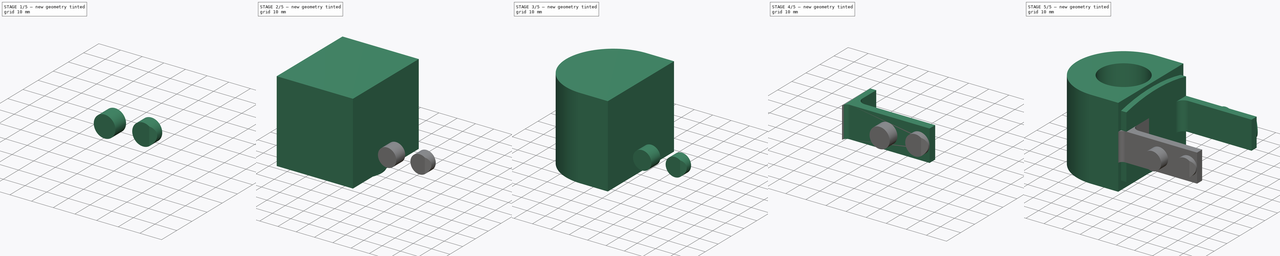
[diagram: build sequence overview — one tinted view per stage of 5, left to right]
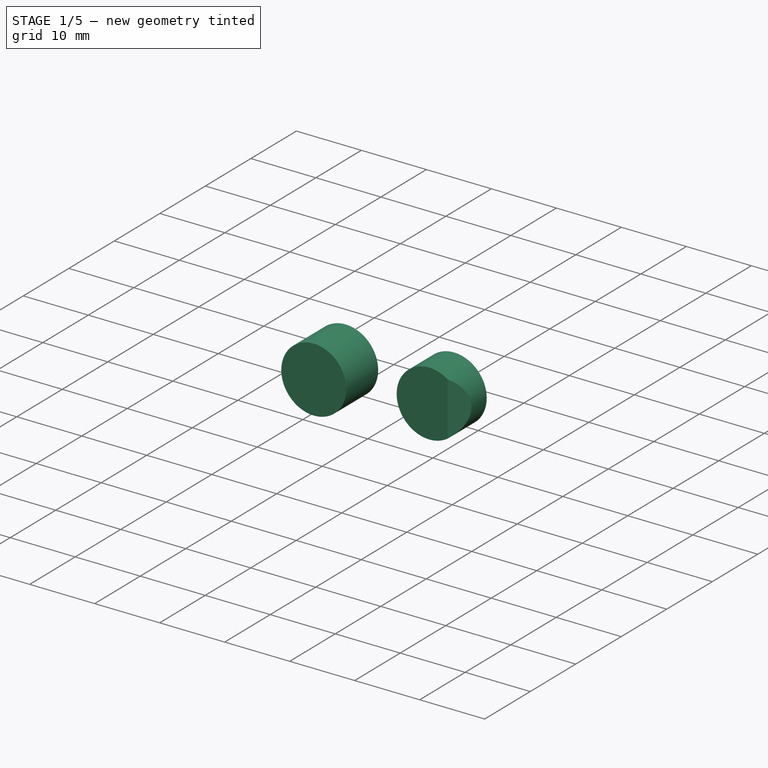
[diagram: stage 1 of 5 — iso view after this stage's code; geometry added in this stage tinted green]
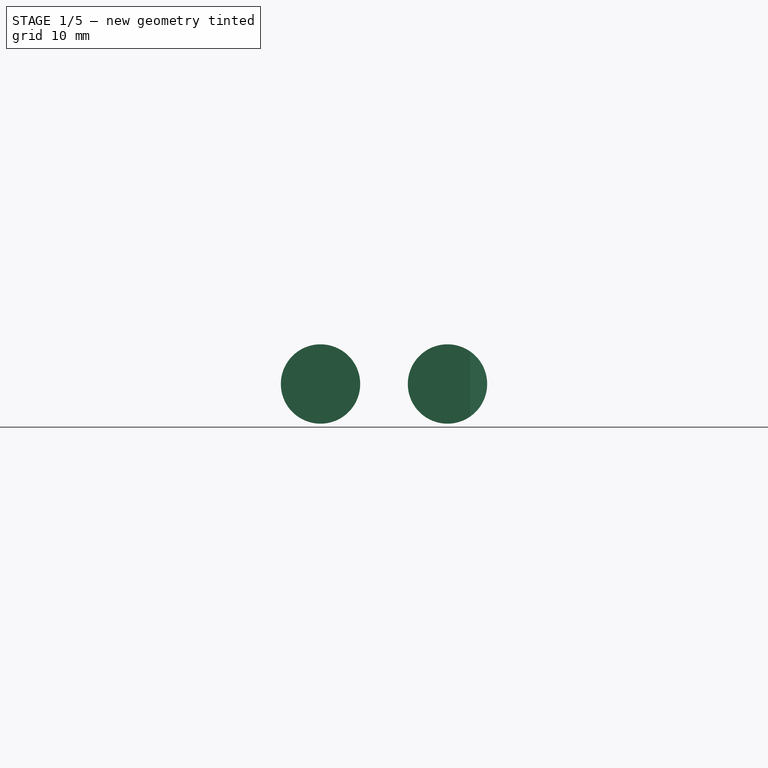
[diagram: stage 1 of 5 — front view after this stage's code; geometry added in this stage tinted green]
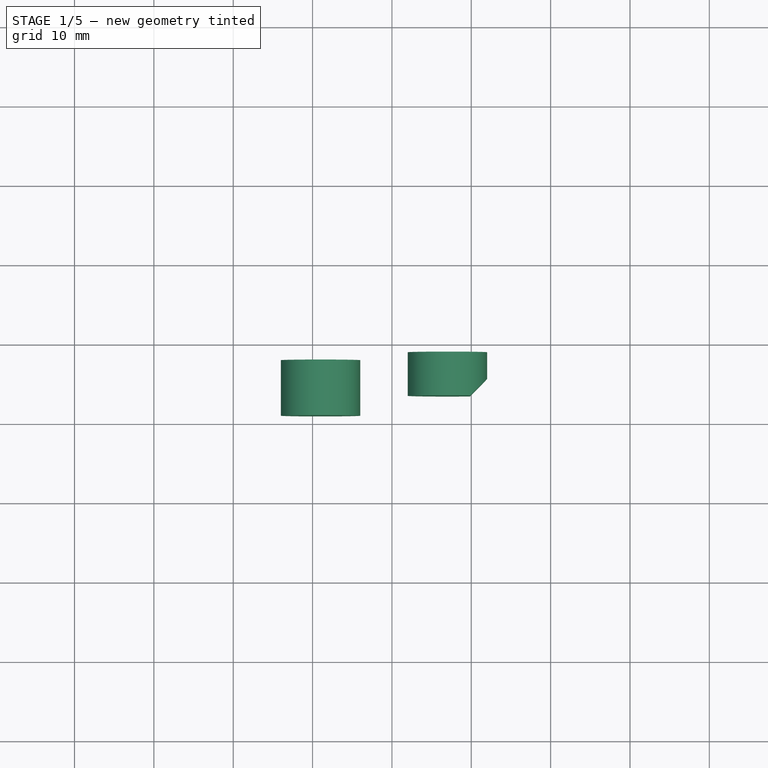
[diagram: stage 1 of 5 — top view after this stage's code; geometry added in this stage tinted green]
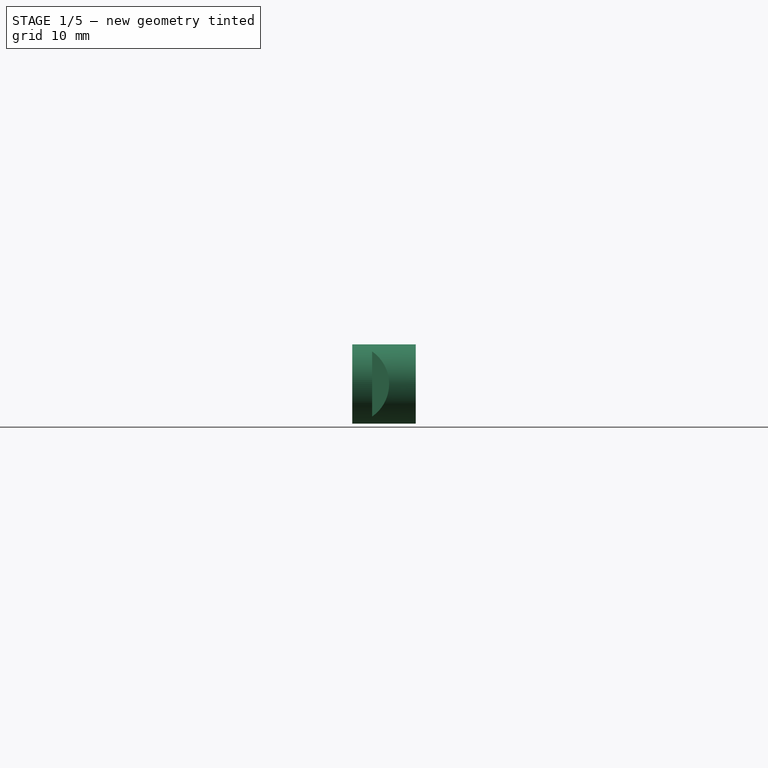
[diagram: stage 1 of 5 — right view after this stage's code; geometry added in this stage tinted green]
FCSTD DOCUMENT  (FreeCAD 0.17R13472 (Git))
Label: rondell_v2.0
License: All rights reserved
LicenseURL: http://en.wikipedia.org/wiki/All_rights_reserved
objects: Part::MultiFuse×5, Part::Cylinder×4, Sketcher::SketchObject×3, Part::Extrusion×3, Part::Box×2, Part::Cut×2, Part::Fuse×1, Part::Common×1, PartDesign::ShapeBinder×1, PartDesign::Body×1, Part::Mirroring×1
note: 24 computed .brp shape members not serialized (recipe doc carries the construction recipe); baked Part::Feature solids carry a one-line shape summary decoded from their .brp

FEATURE [Part::Cylinder] Cylinder002
  Angle = 360
  AttacherType = Attacher::AttachEngine3D
  Height = 5.5
  Placement = pos=(37,-21,0) rot=(1,0,0;1.5708rad)
  Radius = 5
FEATURE [Part::Box] Box001  label="Cube001"
  AttacherType = Attacher::AttachEngine3D
  Height = 20
  Length = 10
  Placement = pos=(45,-35.5,-10) rot=(0,0,1;0.785398rad)
  Width = 10
FEATURE [Part::Cut] Cut001
  Base = -> Cylinder002
  Tool = -> Box001
FEATURE [Part::Cylinder] Cylinder003  label="Drücker"
  Angle = 360
  AttacherType = Attacher::AttachEngine3D
  Height = 7
  Placement = pos=(21,-22,0) rot=(1,0,0;1.5708rad)
  Radius = 5
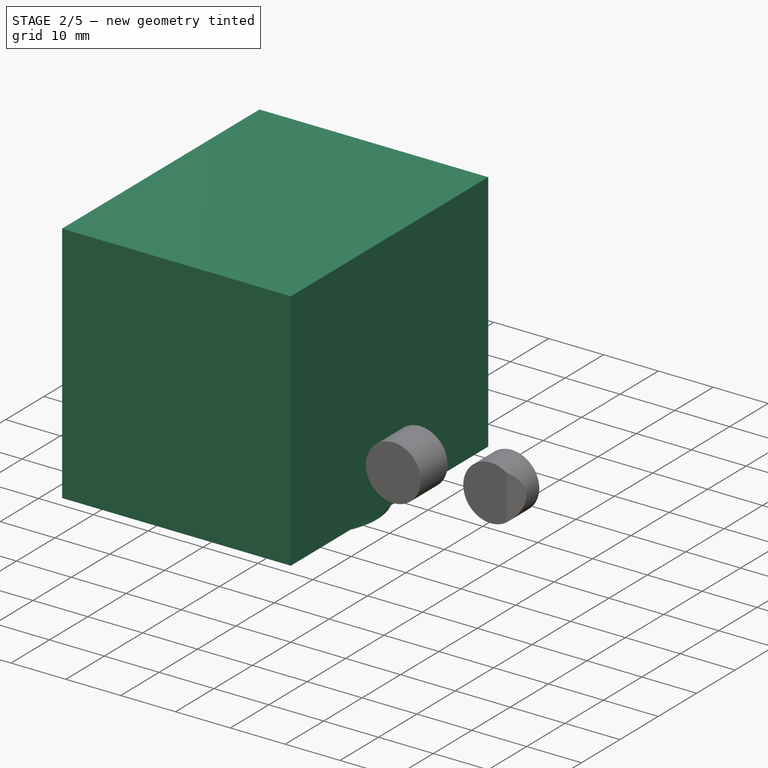
[diagram: stage 2 of 5 — iso view after this stage's code; geometry added in this stage tinted green]
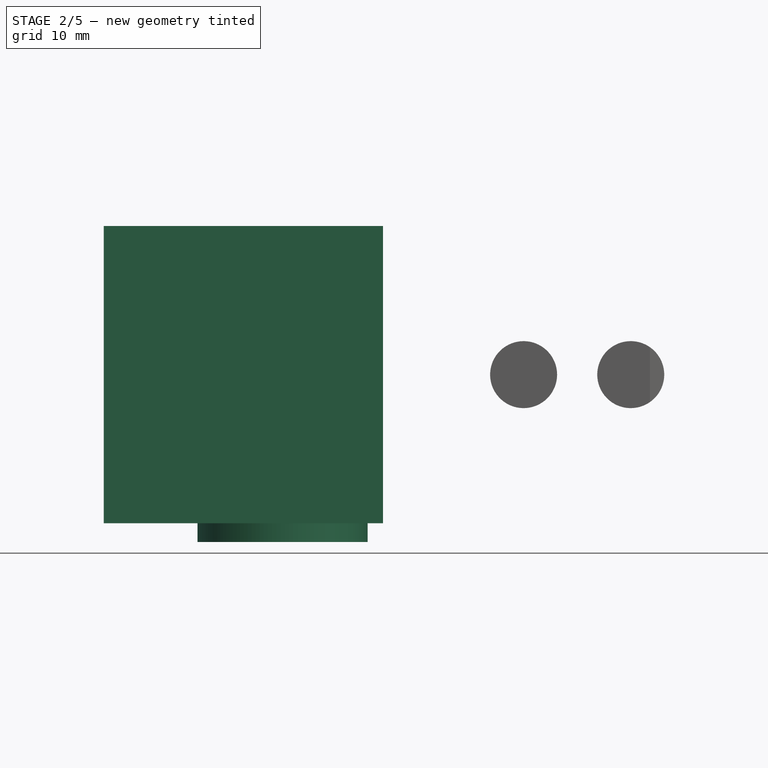
[diagram: stage 2 of 5 — front view after this stage's code; geometry added in this stage tinted green]
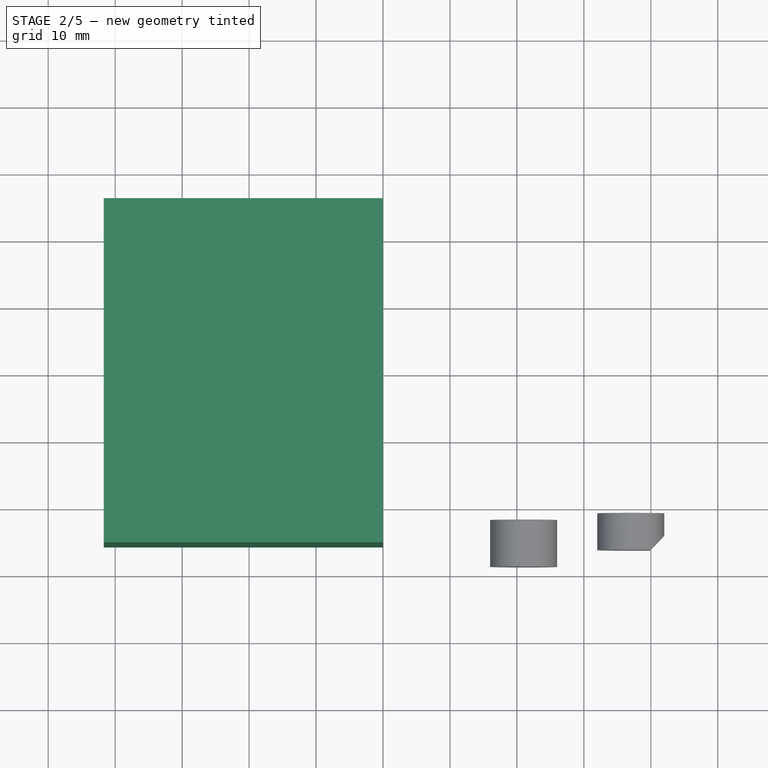
[diagram: stage 2 of 5 — top view after this stage's code; geometry added in this stage tinted green]
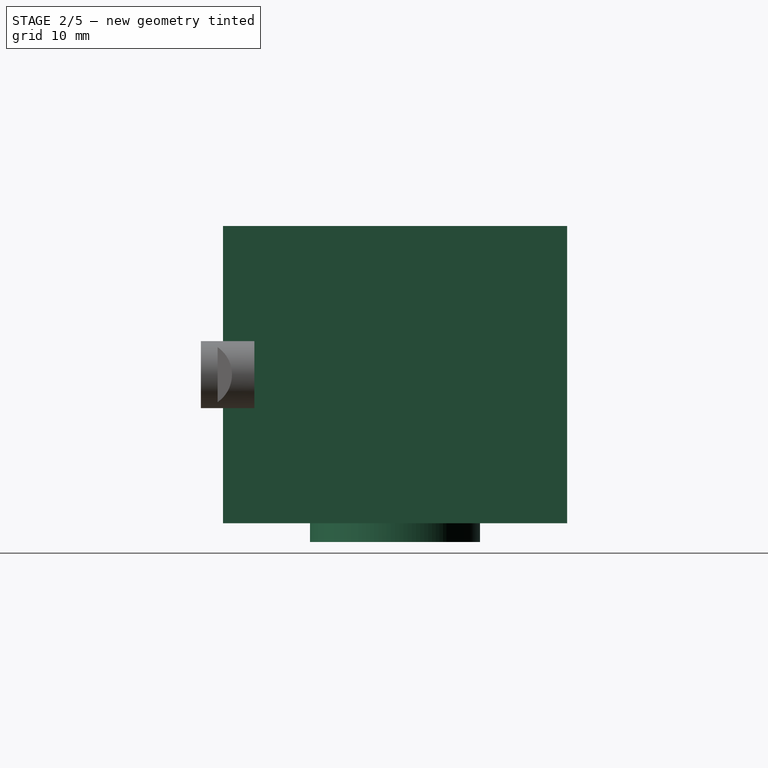
[diagram: stage 2 of 5 — right view after this stage's code; geometry added in this stage tinted green]
FEATURE [Sketcher::SketchObject] Sketch  label="inner bevel"
  MapMode = 5
  Placement = pos=(0,0,0) rot=(0.57735,0.57735,0.57735;2.0944rad)
  Support = -> [YZ_Plane]
  sketch-geometry (8):
    g0: LineSegment [constr] StartX=-23.5 StartY=17.4 StartZ=0 EndX=23.5 EndY=17.4 EndZ=0
    g1: LineSegment StartX=23.5 StartY=17.4 StartZ=0 EndX=23.5 EndY=-17.4 EndZ=0
    g2: LineSegment [constr] StartX=23.5 StartY=-17.4 StartZ=0 EndX=-23.5 EndY=-17.4 EndZ=0
    g3: LineSegment StartX=-23.5 StartY=-17.4 StartZ=0 EndX=-23.5 EndY=17.4 EndZ=0
    g4: ArcOfCircle CenterX=0 CenterY=-87.5019 CenterZ=0 NormalX=0 NormalY=0 NormalZ=1 AngleXU=0 Radius=107.502 StartAngle=1.35042 EndAngle=1.79118
    g5: ArcOfCircle CenterX=0 CenterY=87.5019 CenterZ=0 NormalX=0 NormalY=0 NormalZ=1 AngleXU=0 Radius=107.502 StartAngle=4.49201 EndAngle=4.93277
    g6: GeomPoint X=0 Y=20 Z=0
    g7: GeomPoint X=0 Y=-20 Z=0
  constraints (22):
    c: Horizontal(g0)
    c: Coincident(g1,g0)
    c: Vertical(g1)
    c: Coincident(g2,g1)
    c: Horizontal(g2)
    c: Coincident(g3,g2)
    c: Coincident(g3,g0)
    c: Vertical(g3)
    c: Coincident(g4,g0)
    c: Coincident(g4,g0)
    c: Coincident(g5,g2)
    c: Coincident(g5,g1)
    c: DistanceY(g7,g6) = 40
    c: PointOnObject(g6,g4)
    c: PointOnObject(g7,g5)
    c: PointOnObject(g6,g-2)
    c: PointOnObject(g7,g-2)
    c: DistanceY(g1,g1) = 34.8
    c: DistanceX(g0,g0) = 47
    c: Symmetric(g0,g0,g-2)
    c: Symmetric(g0,g2,g-1)
    c: Symmetric(g7,g6,g-1)
FEATURE [Part::Cylinder] Cylinder
  Angle = 180
  AttacherType = Attacher::AttachEngine3D
  Height = 44.4
  Placement = pos=(-15,0,-22.2) rot=(0,0,1;1.5708rad)
  Radius = 25.7
FEATURE [Sketcher::SketchObject] Sketch001  label="outer bevel"
  ExternalGeometry = -> [Sketch]
  MapMode = 5
  Placement = pos=(0,0,0) rot=(0.57735,0.57735,0.57735;2.0944rad)
  Support = -> [YZ_Plane]
  sketch-geometry (15):
    g0: ArcOfCircle CenterX=0 CenterY=-87.5019 CenterZ=0 NormalX=0 NormalY=0 NormalZ=1 AngleXU=0 Radius=109.702 StartAngle=1.33433 EndAngle=1.80727
    g1: GeomPoint X=0 Y=20 Z=0
    g2: GeomPoint X=0 Y=-20 Z=0
    g3: GeomPoint X=0 Y=22.2 Z=0
    g4: ArcOfCircle [constr] CenterX=0 CenterY=87.5019 CenterZ=0 NormalX=0 NormalY=0 NormalZ=1 AngleXU=0 Radius=109.702 StartAngle=4.47592 EndAngle=4.94886
    g5: LineSegment StartX=-25.7 StartY=19.1471 StartZ=0 EndX=-25.7 EndY=-19.1471 EndZ=0
    g6: LineSegment StartX=25.7 StartY=19.1471 StartZ=0 EndX=25.7 EndY=-19.1471 EndZ=0
    g7: LineSegment [constr] StartX=-23.5 StartY=17.4 StartZ=0 EndX=-23.9809 EndY=19.5468 EndZ=0
    g8: GeomPoint X=0 Y=-22.2 Z=0
    g9: LineSegment StartX=-25.7 StartY=-19.1471 StartZ=0 EndX=-25.7 EndY=-22.2 EndZ=0
    g10: LineSegment StartX=-25.7 StartY=-22.2 StartZ=0 EndX=25.7 EndY=-22.2 EndZ=0
    g11: LineSegment StartX=25.7 StartY=-22.2 StartZ=0 EndX=25.7 EndY=-19.1471 EndZ=0
    g12: LineSegment StartX=-25.7 StartY=19.1471 StartZ=0 EndX=-25.7 EndY=19.7396 EndZ=0
    g13: LineSegment StartX=-25.7 StartY=19.7396 StartZ=0 EndX=25.701 EndY=19.7396 EndZ=0
    g14: LineSegment StartX=25.701 StartY=19.7396 StartZ=0 EndX=25.7 EndY=19.1471 EndZ=0
  constraints (38):
    c: PointOnObject(g1,g-5)
    c: PointOnObject(g2,g-6)
    c: PointOnObject(g2,g-2)
    c: PointOnObject(g1,g-2)
    c: PointOnObject(g3,g0)
    c: PointOnObject(g3,g-2)
    c: Coincident(g5,g4)
    c: Vertical(g5)
    c: Coincident(g6,g0)
    c: Coincident(g6,g4)
    c: Vertical(g6)
    c: DistanceX(g0,g3) = 25.7
    c: Coincident(g0,g5)
    c: DistanceX(g-5,g0) = 2.2
    c: DistanceY(g1,g3) = 2.2
    c: Horizontal(g0,g0)
    c: Coincident(g7,g-5)
    c: PointOnObject(g7,g0)
    c: Perpendicular(g0,g7)
    c: Distance(g7) = 2.2
    c: Symmetric(g4,g0,g-1)
    c: Symmetric(g4,g0,g-1)
    c: PointOnObject(g8,g4)
    c: PointOnObject(g8,g-2)
    c: Symmetric(g8,g3,g-1)
    c: Coincident(g9,g4)
    c: Vertical(g9)
    c: Coincident(g10,g9)
    c: Horizontal(g10)
    c: Coincident(g11,g10)
    c: Coincident(g11,g4)
    c: Vertical(g11)
    c: PointOnObject(g8,g10)
    c: Coincident(g12,g0)
    c: Vertical(g12)
    c: Coincident(g13,g12)
    c: Horizontal(g13)
    c: Coincident(g14,g13)
FEATURE [Part::Box] Box  label="Cube"
  AttacherType = Attacher::AttachEngine3D
  Height = 44.4
  Length = 15
  Placement = pos=(-15,-25.7,-22.2) rot=(0,0,1;0rad)
  Width = 51.4
FEATURE [Part::Extrusion] Extrude006  label="outer bevel extrusion"
  Base = -> Sketch001
  Dir = (1,0,0)
  DirMode = 2
  FaceMakerClass = Part::FaceMakerBullseye
  LengthFwd = -41.7
  LengthRev = 0
  Solid = true
  Symmetric = false
FEATURE [Part::Cylinder] Cylinder001
  Angle = 360
  AttacherType = Attacher::AttachEngine3D
  Height = 40
  Placement = pos=(-15,0,-25) rot=(1,0,0;0rad)
  Radius = 12.7
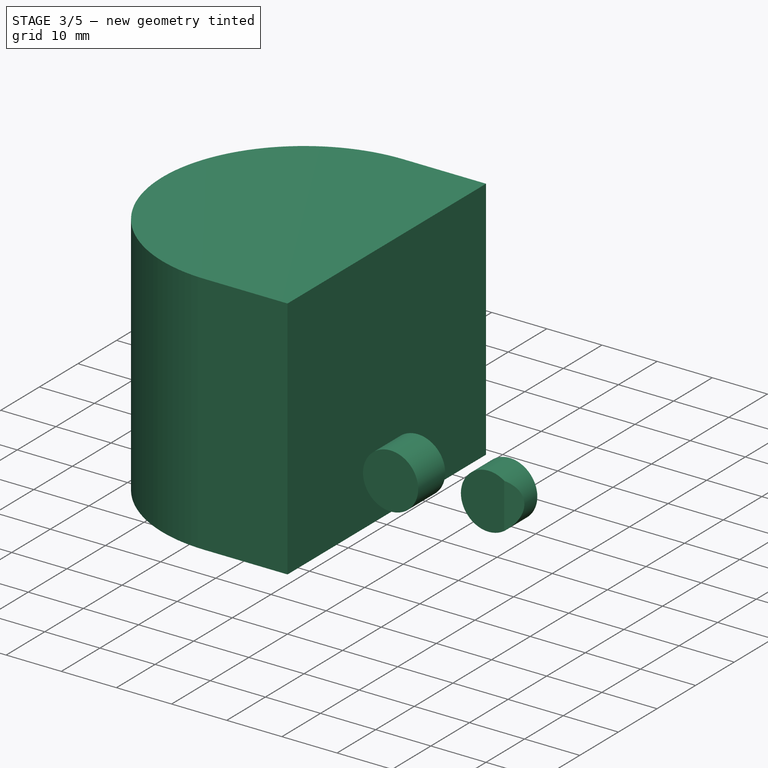
[diagram: stage 3 of 5 — iso view after this stage's code; geometry added in this stage tinted green]
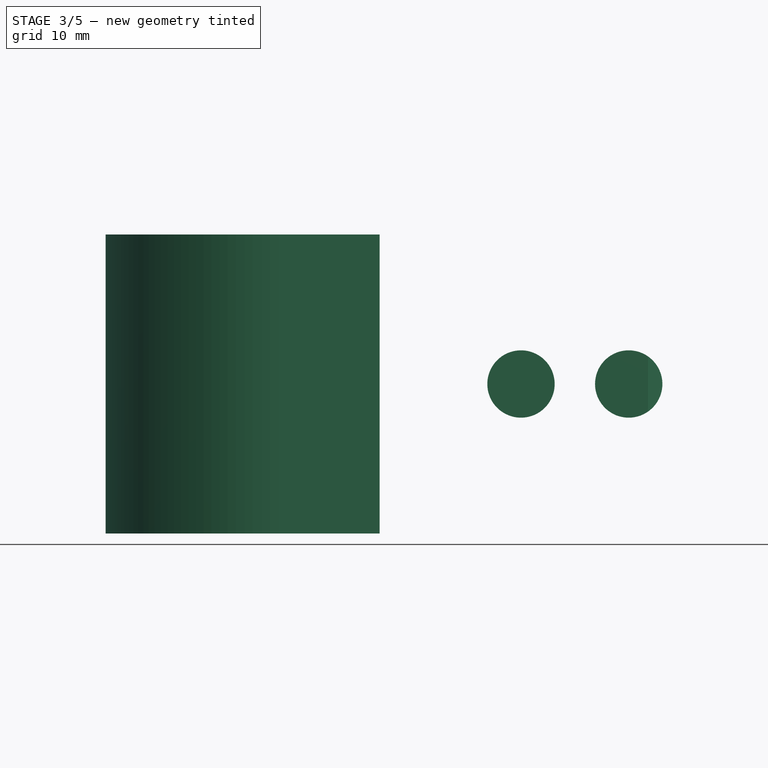
[diagram: stage 3 of 5 — front view after this stage's code; geometry added in this stage tinted green]
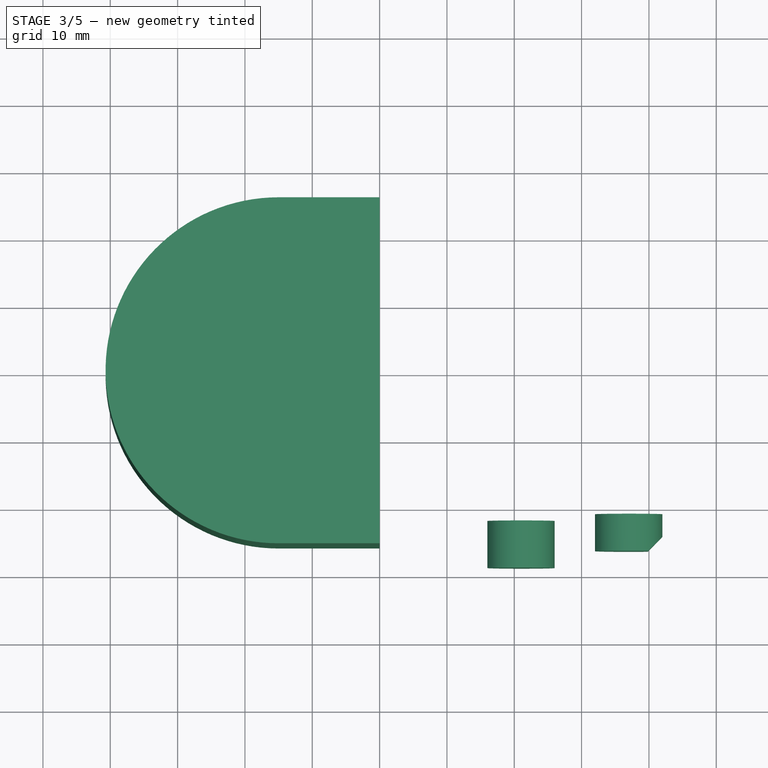
[diagram: stage 3 of 5 — top view after this stage's code; geometry added in this stage tinted green]
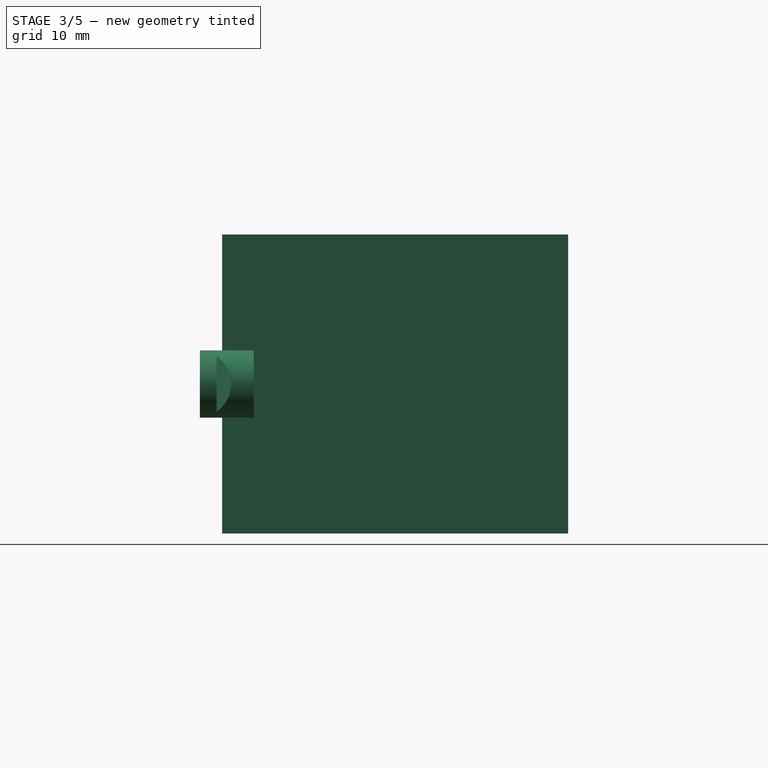
[diagram: stage 3 of 5 — right view after this stage's code; geometry added in this stage tinted green]
FEATURE [Part::Fuse] Fusion  label="culinder"
  Base = -> Cylinder
  Tool = -> Box
FEATURE [Part::Common] Common
  Base = -> Fusion
  Tool = -> Extrude006
FEATURE [Part::Cut] Cut
  Base = -> Common
  Tool = -> Cylinder001
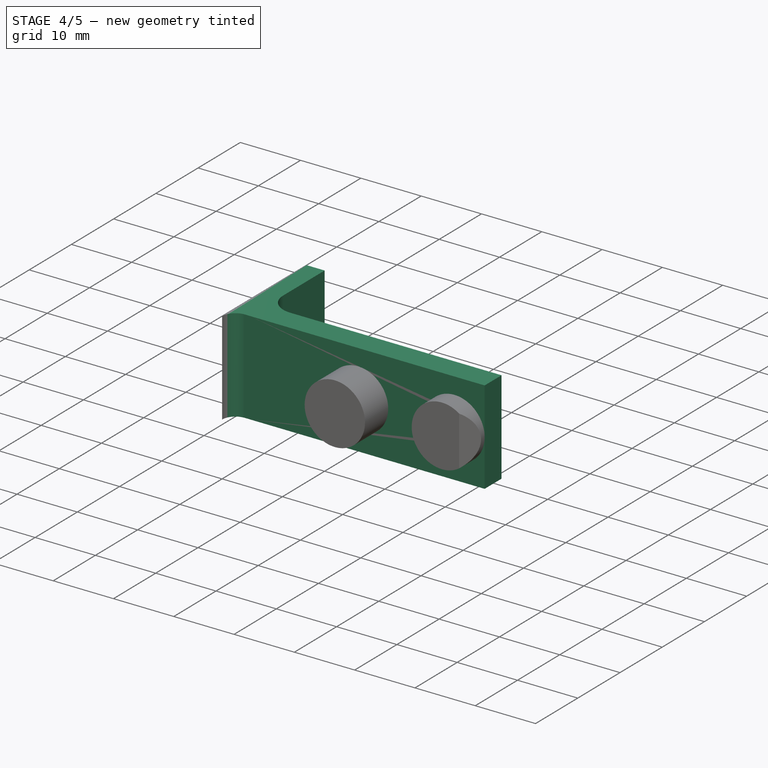
[diagram: stage 4 of 5 — iso view after this stage's code; geometry added in this stage tinted green]
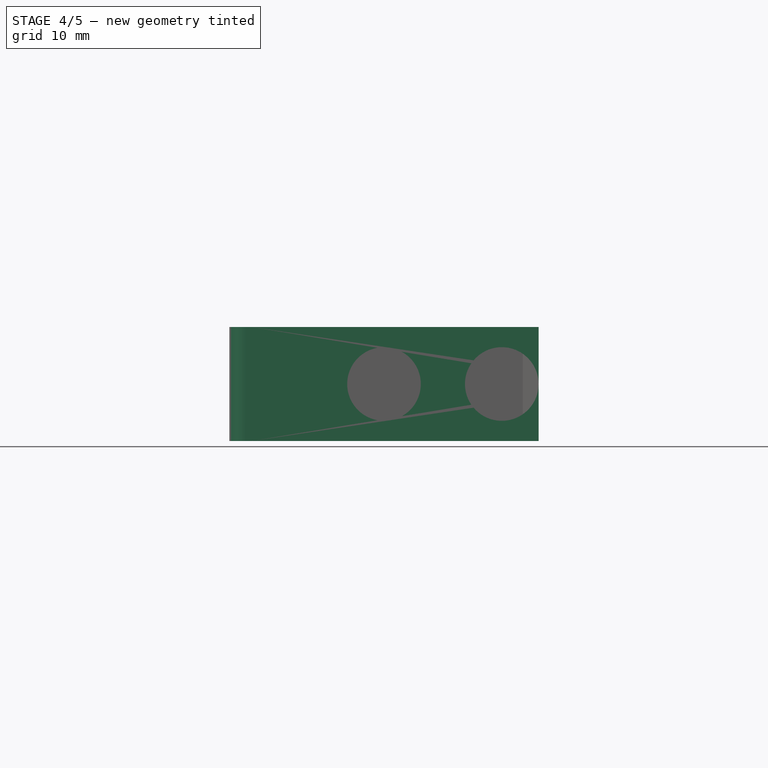
[diagram: stage 4 of 5 — front view after this stage's code; geometry added in this stage tinted green]
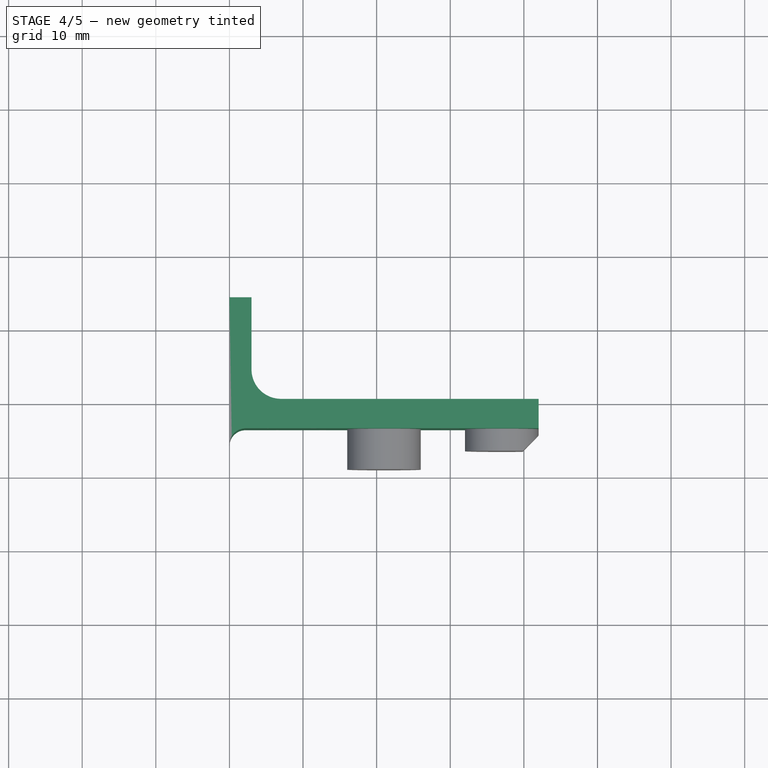
[diagram: stage 4 of 5 — top view after this stage's code; geometry added in this stage tinted green]
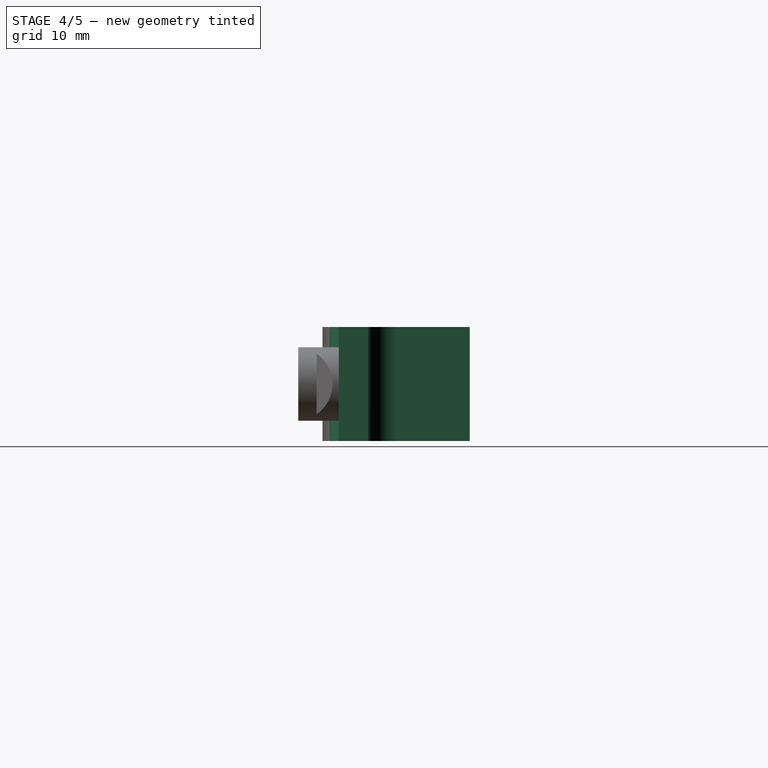
[diagram: stage 4 of 5 — right view after this stage's code; geometry added in this stage tinted green]
FEATURE [Part::Extrusion] Extrude001
  Base = -> Sketch
  Dir = (1,0,0)
  DirMode = 2
  FaceMakerClass = Part::FaceMakerBullseye
  LengthFwd = 3
  LengthRev = 0
  Solid = true
  Symmetric = false
FEATURE [Part::MultiFuse] Fusion001
  Shapes = -> [Cut,Extrude001]
FEATURE [PartDesign::ShapeBinder] ShapeBinder
  Support = -> [Fusion001]
FEATURE [Sketcher::SketchObject] Sketch002  label="clampXY"
  ExternalGeometry = -> [ShapeBinder]
  MapMode = 5
  Support = -> [XY_Plane]
  sketch-geometry (10):
    g0: LineSegment [constr] StartX=0 StartY=-23.5 StartZ=0 EndX=42 EndY=-23.5 EndZ=0
    g1: LineSegment StartX=3 StartY=-23.5 StartZ=0 EndX=42 EndY=-23.5 EndZ=0
    g2: LineSegment StartX=42 StartY=-23.5 StartZ=0 EndX=42 EndY=-19.5 EndZ=0
    g3: LineSegment StartX=0 StartY=-5.7 StartZ=0 EndX=0 EndY=-25.7 EndZ=0
    g4: LineSegment StartX=42 StartY=-19.5 StartZ=0 EndX=7 EndY=-19.5 EndZ=0
    g5: LineSegment StartX=3 StartY=-5.7 StartZ=0 EndX=3 EndY=-15.5 EndZ=0
    g6: ArcOfCircle CenterX=7 CenterY=-15.5 CenterZ=0 NormalX=0 NormalY=0 NormalZ=1 AngleXU=0 Radius=4 StartAngle=3.14159 EndAngle=4.71239
    g7: ArcOfCircle CenterX=2.2 CenterY=-25.7 CenterZ=0 NormalX=0 NormalY=0 NormalZ=1 AngleXU=0 Radius=2.2 StartAngle=1.5708 EndAngle=3.14159
    g8: LineSegment StartX=3 StartY=-23.5 StartZ=0 EndX=2.2 EndY=-23.5 EndZ=0
    g9: LineSegment StartX=3 StartY=-5.7 StartZ=0 EndX=0 EndY=-5.7 EndZ=0
  constraints (26):
    c: Horizontal(g0)
    c: DistanceX(g-3,g0) = 42
    c: Coincident(g1,g0)
    c: Coincident(g2,g0)
    c: Vertical(g2)
    c: DistanceY(g2,g2) = 4
    c: Vertical(g3)
    c: Coincident(g0,g-3)
    c: Coincident(g3,g-4)
    c: DistanceY(g3,g3) = 20
    c: Coincident(g1,g-3)
    c: Coincident(g4,g2)
    c: Horizontal(g4)
    c: Tangent(g6,g5) = -1.5708
    c: Tangent(g6,g4) = 1.5708
    c: Radius(g6) = 4
    c: Coincident(g7,g3)
    c: Horizontal(g3,g7)
    c: Coincident(g8,g1)
    c: Horizontal(g8)
    c: Tangent(g8,g7) = -1.5708
    c: Vertical(g5,g1)
    c: Vertical(g5)
    c: Coincident(g9,g5)
    c: Coincident(g9,g3)
    c: Horizontal(g9)
FEATURE [PartDesign::Body] Body
  Group = -> [Sketch,Sketch001,ShapeBinder,Sketch002]
  Origin = -> Origin
FEATURE [Part::Extrusion] Extrude
  Base = -> Sketch002
  Dir = (0,0,1)
  DirMode = 2
  FaceMakerClass = Part::FaceMakerBullseye
  LengthFwd = 15.5
  LengthRev = 0
  Solid = true
  Symmetric = true
FEATURE [Part::MultiFuse] Fusion002  label="clamp"
  Shapes = -> [Extrude,Cut001]
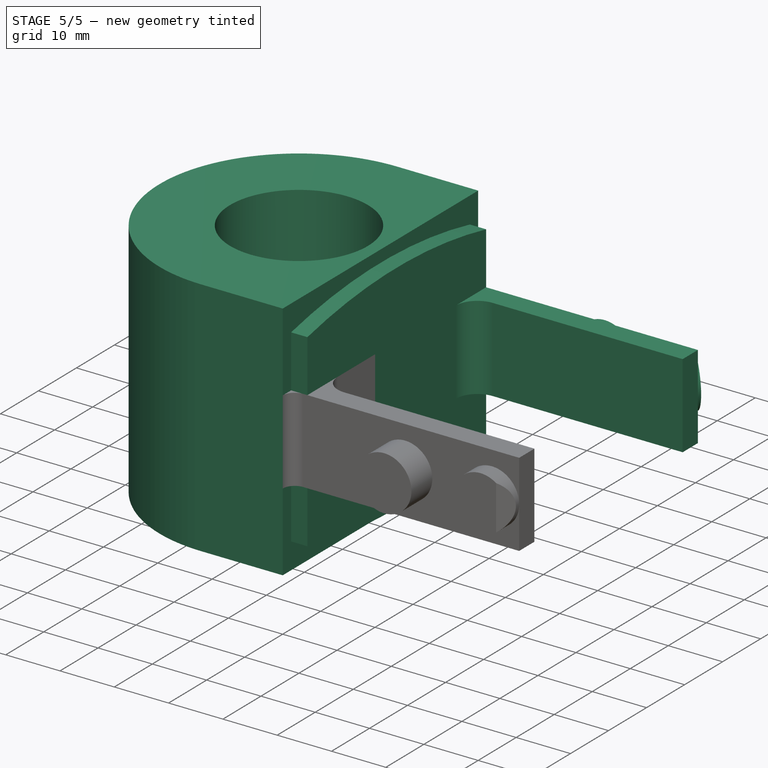
[diagram: stage 5 of 5 — iso view after this stage's code; geometry added in this stage tinted green]
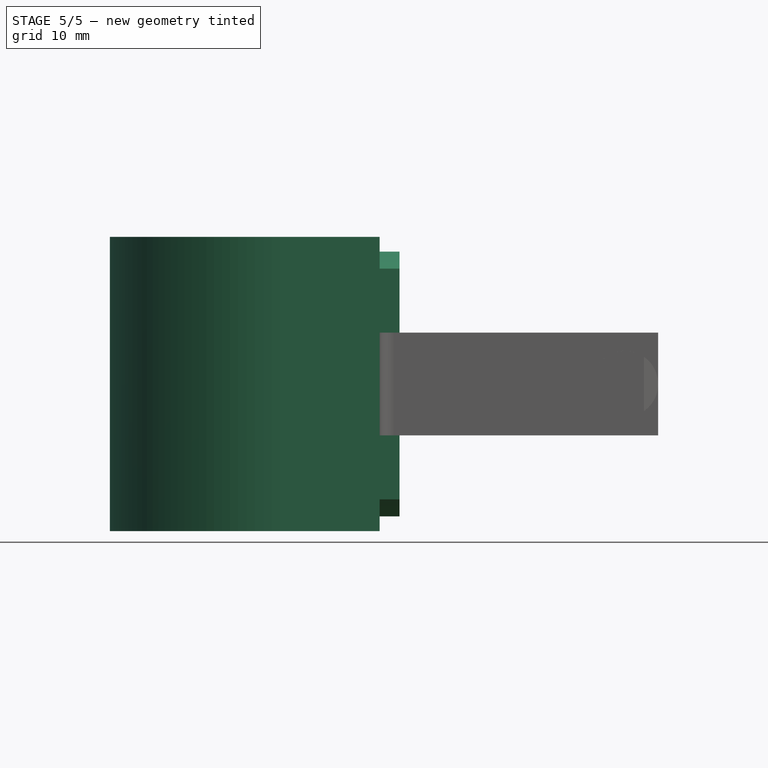
[diagram: stage 5 of 5 — front view after this stage's code; geometry added in this stage tinted green]
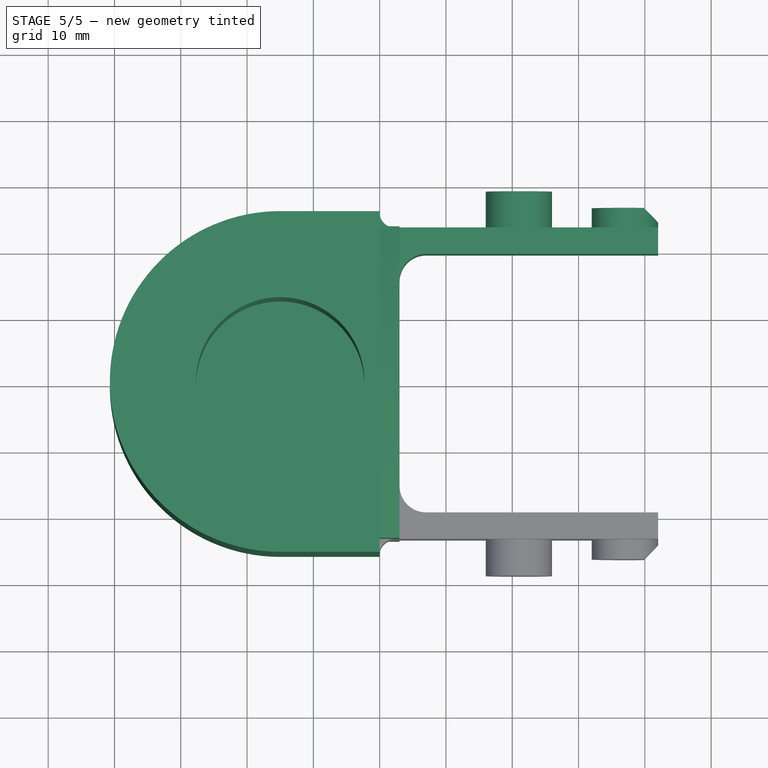
[diagram: stage 5 of 5 — top view after this stage's code; geometry added in this stage tinted green]
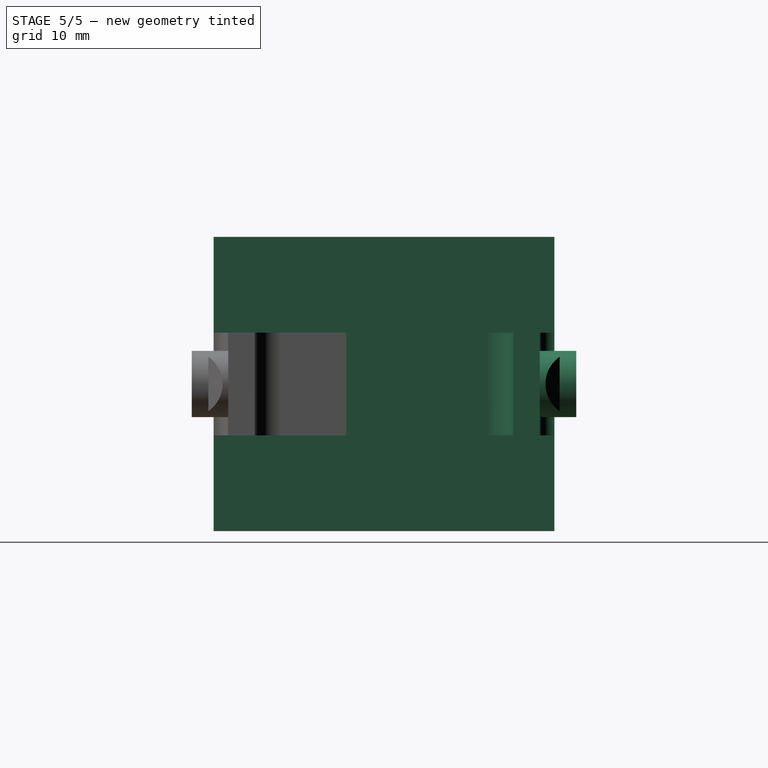
[diagram: stage 5 of 5 — right view after this stage's code; geometry added in this stage tinted green]
FEATURE [Part::MultiFuse] Fusion005  label="newclamp"
  Shapes = -> [Fusion002,Cylinder003]
FEATURE [Part::Mirroring] Part__Mirroring  label="clamp (Mirror #1)"
  Base = (0,0,0)
  Normal = (0,1,0)
  Source = -> Fusion005
FEATURE [Part::MultiFuse] Fusion003  label="clampndrucker"
  Shapes = -> [Fusion001,Fusion005]
FEATURE [Part::MultiFuse] Fusion004
  Placement = pos=(0,0,0) rot=(1,0,0;3.14159rad)
  Shapes = -> [Fusion003,Part__Mirroring]
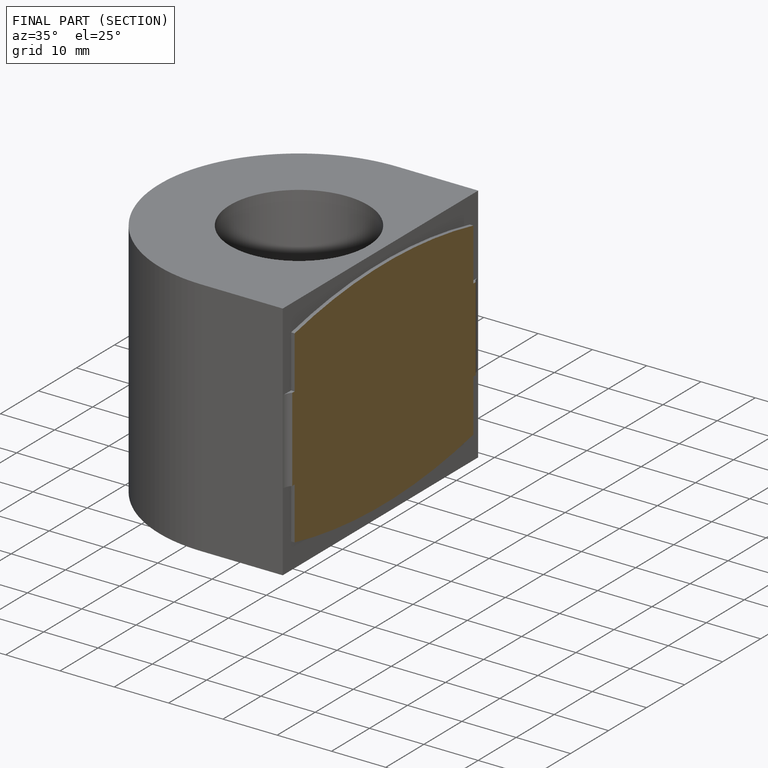
[diagram: finished part — half-section view (interior)]
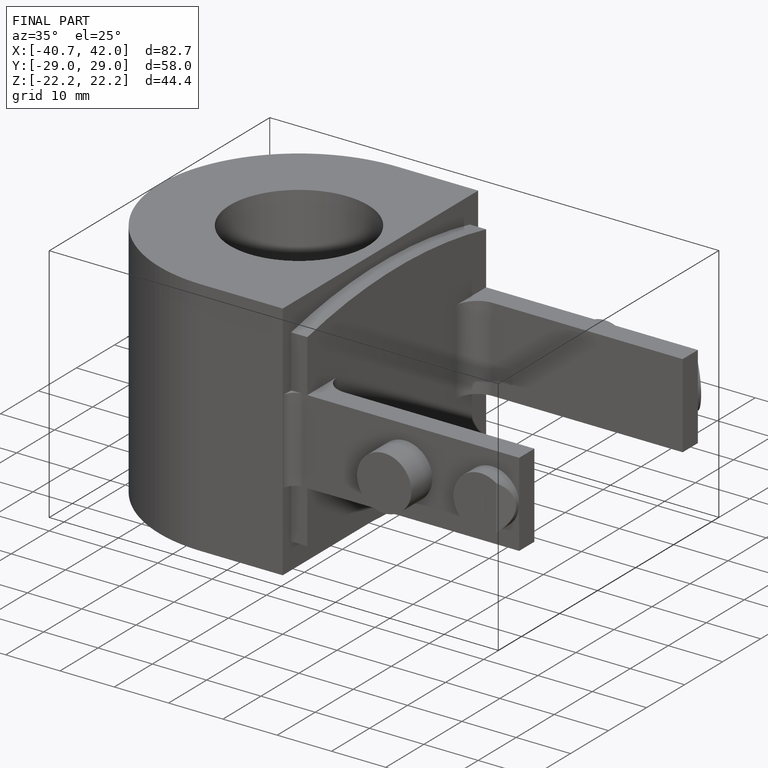
[diagram: finished part — iso view with bounding-box wireframe]
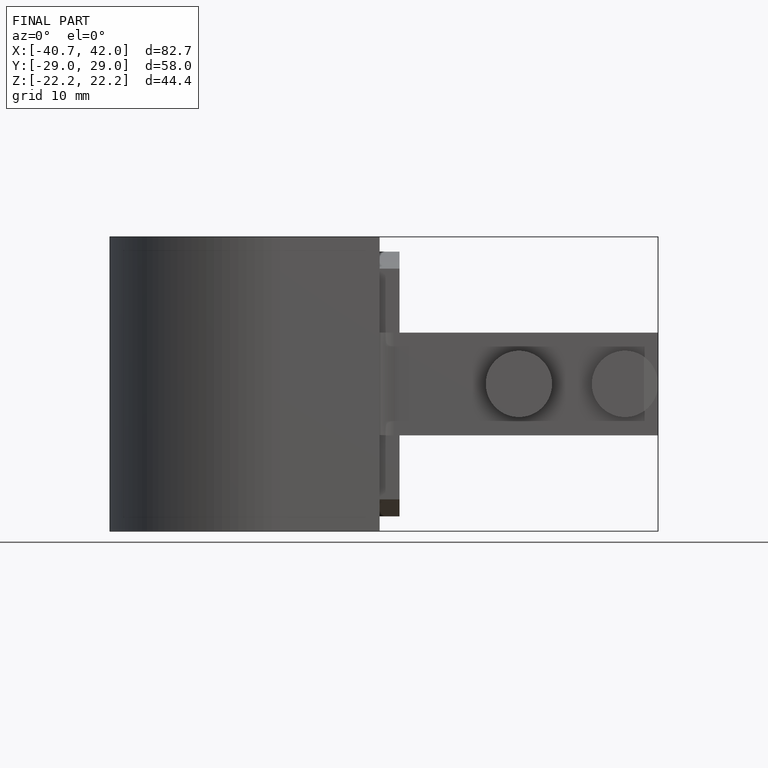
[diagram: finished part — front view with bounding-box wireframe]
